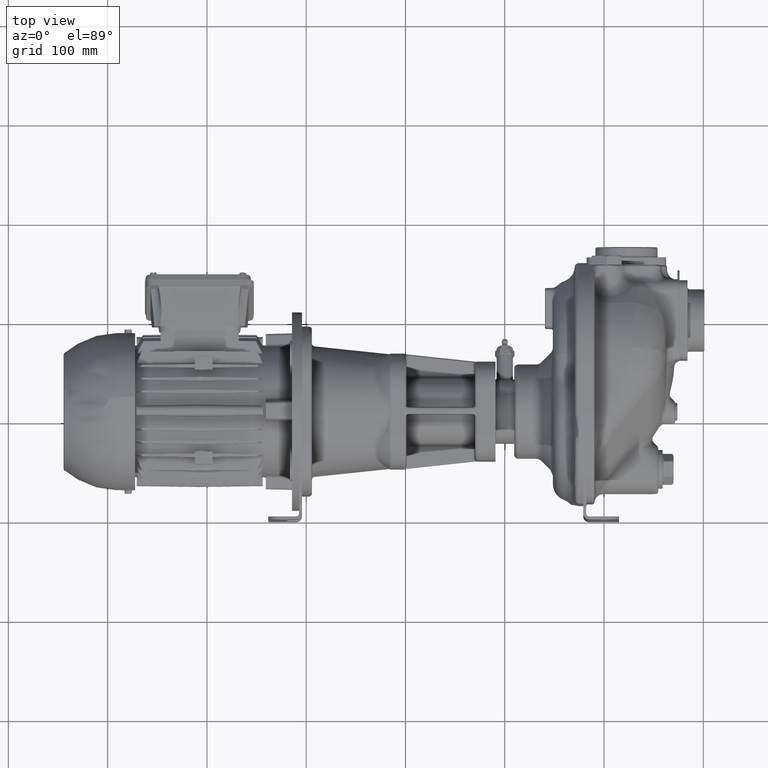
[diagram: clean part render]
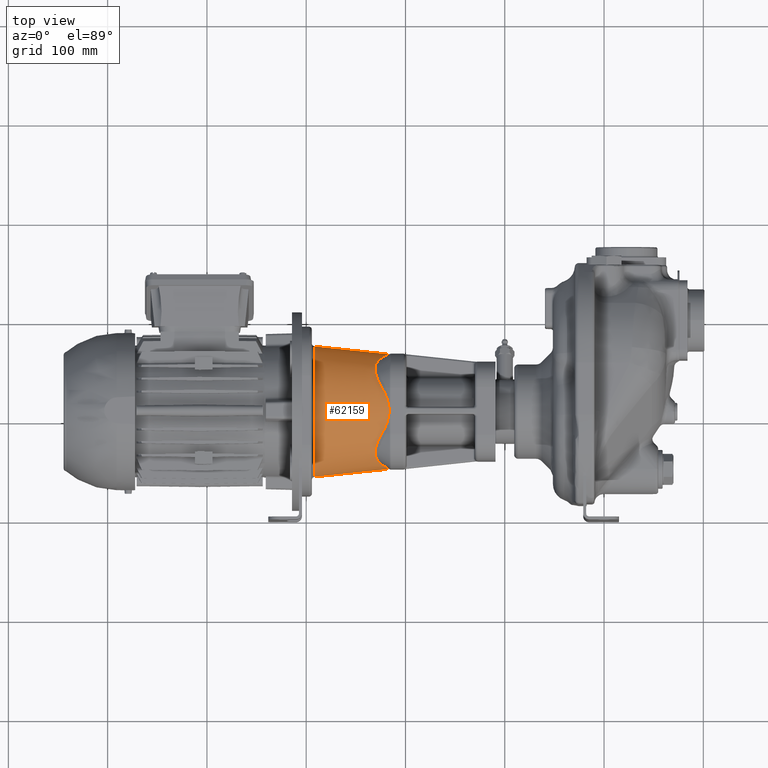
[diagram: same view with one face highlighted and labeled with its STEP entity id]
A machine part, top view. The second image highlights one B-rep face of the part: STEP entity #62159.
In plain terms, the highlighted conical surface has half-angle 6 deg.
Its self-contained STEP definition (entity closure, byte-faithful):
#12495=DIRECTION('',(9.945218953667E-1,1.045284632831E-1,0.E0));
#12496=VECTOR('',#12495,7.573120619177E1);
#12497=CARTESIAN_POINT('',(-2.916135853898E2,4.425481215539E1,
1.485829362958E-14));
#12498=LINE('',#12497,#12496);
#12511=CARTESIAN_POINT('',(-2.162972426696E2,5.217087876119E1,0.E0));
#12711=CARTESIAN_POINT('',(-2.162972426696E2,1.678291212388E2,0.E0));
#12735=CARTESIAN_POINT('',(-2.916135853898E2,1.1E2,0.E0));
#12736=DIRECTION('',(1.E0,0.E0,0.E0));
#12737=DIRECTION('',(0.E0,1.E0,0.E0));
#12738=AXIS2_PLACEMENT_3D('',#12735,#12736,#12737);
#12745=DIRECTION('',(9.945218953667E-1,-1.045284632831E-1,0.E0));
#12746=VECTOR('',#12745,7.573120619177E1);
#12747=CARTESIAN_POINT('',(-2.916135853898E2,1.757451878446E2,
-1.080946128312E-14));
#12748=LINE('',#12747,#12746);
#12749=CARTESIAN_POINT('',(-2.178097378126E2,1.672505349841E2,
9.219269410111E0));
#12750=CARTESIAN_POINT('',(-2.176890196349E2,1.673162071738E2,
8.731647483797E0));
#12751=CARTESIAN_POINT('',(-2.174598943548E2,1.674303657817E2,
7.793959418397E0));
#12752=CARTESIAN_POINT('',(-2.171524709747E2,1.675613179546E2,
6.467291625107E0));
#12753=CARTESIAN_POINT('',(-2.169075952571E2,1.676517311598E2,
5.318879883548E0));
#12754=CARTESIAN_POINT('',(-2.167153594959E2,1.677148396659E2,
4.311058331271E0));
#12755=CARTESIAN_POINT('',(-2.165702090771E2,1.677579831526E2,
3.430620553060E0));
#12756=CARTESIAN_POINT('',(-2.164626541015E2,1.677875618698E2,
2.646062856076E0));
#12757=CARTESIAN_POINT('',(-2.163854575885E2,1.678075452509E2,
1.930213703452E0));
#12758=CARTESIAN_POINT('',(-2.163335135172E2,1.678204134019E2,
1.260845323195E0));
#12759=CARTESIAN_POINT('',(-2.163036074568E2,1.678276105429E2,
6.204674837014E-1));
#12760=CARTESIAN_POINT('',(-2.162972432892E2,1.678291212869E2,
2.045278293982E-1));
#12761=CARTESIAN_POINT('',(-2.162972426696E2,1.678291212388E2,0.E0));
#12763=CARTESIAN_POINT('',(-2.232081546717E2,1.643120255443E2,
2.188490304259E1));
#12764=CARTESIAN_POINT('',(-2.229975200607E2,1.644267440128E2,
2.154097052883E1));
#12765=CARTESIAN_POINT('',(-2.225890865486E2,1.646491753191E2,
2.085614097833E1));
#12766=CARTESIAN_POINT('',(-2.220143612581E2,1.649621301244E2,
1.983939274068E1));
#12767=CARTESIAN_POINT('',(-2.214757642771E2,1.652553785563E2,
1.883237292535E1));
#12768=CARTESIAN_POINT('',(-2.209719358071E2,1.655296669165E2,
1.783486057273E1));
#12769=CARTESIAN_POINT('',(-2.205015176788E2,1.657857406005E2,
1.684647944565E1));
#12770=CARTESIAN_POINT('',(-2.200632380201E2,1.660242969797E2,
1.586682939850E1));
#12771=CARTESIAN_POINT('',(-2.196559156630E2,1.662459837265E2,
1.489551216629E1));
#12772=CARTESIAN_POINT('',(-2.192784449588E2,1.664514068261E2,
1.393210561728E1));
#12773=CARTESIAN_POINT('',(-2.189297914882E2,1.666411328566E2,
1.297615286718E1));
#12774=CARTESIAN_POINT('',(-2.186090234181E2,1.668156723822E2,
1.202726252442E1));
#12775=CARTESIAN_POINT('',(-2.183152378263E2,1.669755193639E2,
1.108490174240E1));
#12776=CARTESIAN_POINT('',(-2.180476512485E2,1.671211032180E2,
1.014866873998E1));
#12777=CARTESIAN_POINT('',(-2.178862596533E2,1.672089055462E2,
9.528370867959E0));
#12778=CARTESIAN_POINT('',(-2.178097378126E2,1.672505349841E2,
9.219269410111E0));
#12780=CARTESIAN_POINT('',(-2.232081546717E2,1.318849030426E2,
5.431202554433E1));
#12781=CARTESIAN_POINT('',(-2.234395400614E2,1.322627181065E2,
5.418600552504E1));
#12782=CARTESIAN_POINT('',(-2.238889409605E2,1.330076033303E2,
5.392804781907E1));
#12783=CARTESIAN_POINT('',(-2.245230046073E2,1.340918004823E2,
5.352540045904E1));
#12784=CARTESIAN_POINT('',(-2.251184044790E2,1.351440889983E2,
5.310828501815E1));
#12785=CARTESIAN_POINT('',(-2.256761308970E2,1.361650393646E2,
5.267808301270E1));
#12786=CARTESIAN_POINT('',(-2.261973444905E2,1.371554966063E2,
5.223599721658E1));
#12787=CARTESIAN_POINT('',(-2.266833306523E2,1.381165639381E2,
5.178301506967E1));
#12788=CARTESIAN_POINT('',(-2.271353204870E2,1.390492830803E2,
5.132004678436E1));
#12789=CARTESIAN_POINT('',(-2.275545710282E2,1.399548032087E2,
5.084784617877E1));
#12790=CARTESIAN_POINT('',(-2.279423067884E2,1.408342832700E2,
5.036705252714E1));
#12791=CARTESIAN_POINT('',(-2.282997169445E2,1.416888971375E2,
4.987818876460E1));
#12792=CARTESIAN_POINT('',(-2.286279428228E2,1.425198195103E2,
4.938166868352E1));
#12793=CARTESIAN_POINT('',(-2.289280681812E2,1.433282135505E2,
4.887780513940E1));
#12794=CARTESIAN_POINT('',(-2.292011125736E2,1.441152237127E2,
4.836681600748E1));
#12795=CARTESIAN_POINT('',(-2.294480258781E2,1.448819674814E2,
4.784883157979E1));
#12796=CARTESIAN_POINT('',(-2.296696847583E2,1.456295304471E2,
4.732390037845E1));
#12797=CARTESIAN_POINT('',(-2.298668896823E2,1.463589626065E2,
4.679199429846E1));
#12798=CARTESIAN_POINT('',(-2.300403628476E2,1.470712749442E2,
4.625301372712E1));
#12799=CARTESIAN_POINT('',(-2.301907468508E2,1.477674370097E2,
4.570679201422E1));
#12800=CARTESIAN_POINT('',(-2.303186038275E2,1.484483753566E2,
4.515309920234E1));
#12801=CARTESIAN_POINT('',(-2.304244156677E2,1.491149715773E2,
4.459164610435E1));
#12802=CARTESIAN_POINT('',(-2.305085841079E2,1.497680623632E2,
4.402208644048E1));
#12803=CARTESIAN_POINT('',(-2.305714301632E2,1.504084383440E2,
4.344401960572E1));
#12804=CARTESIAN_POINT('',(-2.306131943096E2,1.510368440534E2,
4.285699225538E1));
#12805=CARTESIAN_POINT('',(-2.306340366703E2,1.516539776368E2,
4.226049971522E1));
#12806=CARTESIAN_POINT('',(-2.306340368469E2,1.522604898149E2,
4.165398771337E1));
#12807=CARTESIAN_POINT('',(-2.306131947851E2,1.528569835009E2,
4.103685328058E1));
#12808=CARTESIAN_POINT('',(-2.305714308408E2,1.534440122171E2,
4.040844640482E1));
#12809=CARTESIAN_POINT('',(-2.305085849057E2,1.540220803319E2,
3.976806926247E1));
#12810=CARTESIAN_POINT('',(-2.304244165093E2,1.545916411907E2,
3.911497732513E1));
#12811=CARTESIAN_POINT('',(-2.303186046380E2,1.551530954093E2,
3.844837995431E1));
#12812=CARTESIAN_POINT('',(-2.301907475621E2,1.557067892507E2,
3.776744048299E1));
#12813=CARTESIAN_POINT('',(-2.300403634043E2,1.562530119006E2,
3.707127732774E1));
#12814=CARTESIAN_POINT('',(-2.298668900356E2,1.567919933122E2,
3.635896394687E1));
#12815=CARTESIAN_POINT('',(-2.296696848689E2,1.573239001303E2,
3.562953080596E1));
#12816=CARTESIAN_POINT('',(-2.294480257176E2,1.578488319633E2,
3.488196693585E1));
#12817=CARTESIAN_POINT('',(-2.292011121258E2,1.583668169139E2,
3.411522235416E1));
#12818=CARTESIAN_POINT('',(-2.289280674438E2,1.588778064580E2,
3.332821148613E1));
#12819=CARTESIAN_POINT('',(-2.286279418108E2,1.593816703044E2,
3.251981686113E1));
#12820=CARTESIAN_POINT('',(-2.282997156880E2,1.598781905775E2,
3.168889404180E1));
#12821=CARTESIAN_POINT('',(-2.279423053319E2,1.603670544265E2,
3.083427987647E1));
#12822=CARTESIAN_POINT('',(-2.275545694380E2,1.608478480563E2,
2.995479969199E1));
#12823=CARTESIAN_POINT('',(-2.271353188447E2,1.613200485443E2,
2.904927961906E1));
#12824=CARTESIAN_POINT('',(-2.266833290396E2,1.617830166367E2,
2.811656068963E1));
#12825=CARTESIAN_POINT('',(-2.261973431356E2,1.622359984146E2,
2.715549398587E1));
#12826=CARTESIAN_POINT('',(-2.256761296129E2,1.626780840496E2,
2.616503697042E1));
#12827=CARTESIAN_POINT('',(-2.251184033436E2,1.631082858447E2,
2.514408696486E1));
#12828=CARTESIAN_POINT('',(-2.245230037587E2,1.635254010190E2,
2.409179901302E1));
#12829=CARTESIAN_POINT('',(-2.238889403433E2,1.639280481790E2,
2.300760230840E1));
#12830=CARTESIAN_POINT('',(-2.234395398370E2,1.641860056530E2,
2.226271772854E1));
#12831=CARTESIAN_POINT('',(-2.232081546717E2,1.643120255443E2,
2.188490304259E1));
#12833=CARTESIAN_POINT('',(-2.178097378126E2,1.192192694101E2,
5.725053498425E1));
#12834=CARTESIAN_POINT('',(-2.178862596511E2,1.195283708620E2,
5.720890554731E1));
#12835=CARTESIAN_POINT('',(-2.180476512444E2,1.201486687228E2,
5.712110322040E1));
#12836=CARTESIAN_POINT('',(-2.183152378190E2,1.210849017192E2,
5.697551936764E1));
#12837=CARTESIAN_POINT('',(-2.186090234066E2,1.220272624882E2,
5.681567238869E1));
#12838=CARTESIAN_POINT('',(-2.189297914902E2,1.229761528752E2,
5.664113285539E1));
#12839=CARTESIAN_POINT('',(-2.192784449895E2,1.239321056999E2,
5.645140680948E1));
#12840=CARTESIAN_POINT('',(-2.196559157277E2,1.248955123273E2,
5.624598369132E1));
#12841=CARTESIAN_POINT('',(-2.200632381185E2,1.258668296274E2,
5.602429692602E1));
#12842=CARTESIAN_POINT('',(-2.205015178170E2,1.268464797462E2,
5.578574052530E1));
#12843=CARTESIAN_POINT('',(-2.209719359785E2,1.278348609235E2,
5.552966682302E1));
#12844=CARTESIAN_POINT('',(-2.214757644649E2,1.288323732850E2,
5.525537845438E1));
#12845=CARTESIAN_POINT('',(-2.220143614521E2,1.298393930963E2,
5.496213001835E1));
#12846=CARTESIAN_POINT('',(-2.225890867932E2,1.308561413955E2,
5.464917518634E1));
#12847=CARTESIAN_POINT('',(-2.229975201619E2,1.315409706965E2,
5.442674395748E1));
#12848=CARTESIAN_POINT('',(-2.232081546717E2,1.318849030426E2,
5.431202554433E1));
#12850=CARTESIAN_POINT('',(-2.178097378126E2,1.007807305899E2,
5.725053498402E1));
#12851=CARTESIAN_POINT('',(-2.176891615503E2,1.012677793627E2,
5.731612998416E1));
#12852=CARTESIAN_POINT('',(-2.174602840830E2,1.022044374470E2,
5.743017828406E1));
#12853=CARTESIAN_POINT('',(-2.171531113421E2,1.035298754064E2,
5.756106012540E1));
#12854=CARTESIAN_POINT('',(-2.169083415381E2,1.046774796263E2,
5.765146955037E1));
#12855=CARTESIAN_POINT('',(-2.167161304847E2,1.056846583996E2,
5.771459834488E1));
#12856=CARTESIAN_POINT('',(-2.165709210484E2,1.065647317201E2,
5.775777953287E1));
#12857=CARTESIAN_POINT('',(-2.164632965035E2,1.073487511112E2,
5.778739070035E1));
#12858=CARTESIAN_POINT('',(-2.163859398525E2,1.080646313860E2,
5.780742340240E1));
#12859=CARTESIAN_POINT('',(-2.163338566934E2,1.087337218705E2,
5.782032979892E1));
#12860=CARTESIAN_POINT('',(-2.163037958847E2,1.093738120390E2,
5.782756632804E1));
#12861=CARTESIAN_POINT('',(-2.162939661104E2,1.099999969094E2,
5.782989868394E1));
#12862=CARTESIAN_POINT('',(-2.163037956904E2,1.106261814660E2,
5.782756637605E1));
#12863=CARTESIAN_POINT('',(-2.163338562563E2,1.112662712200E2,
5.782032990390E1));
#12864=CARTESIAN_POINT('',(-2.163859392033E2,1.119353615745E2,
5.780742356713E1));
#12865=CARTESIAN_POINT('',(-2.164632955390E2,1.126512410926E2,
5.778739095681E1));
#12866=CARTESIAN_POINT('',(-2.165709198334E2,1.134352601499E2,
5.775777987608E1));
#12867=CARTESIAN_POINT('',(-2.167161285895E2,1.143153311004E2,
5.771459893934E1));
#12868=CARTESIAN_POINT('',(-2.169083401725E2,1.153225137310E2,
5.765147002426E1));
#12869=CARTESIAN_POINT('',(-2.171531099972E2,1.164701187729E2,
5.756106069434E1));
#12870=CARTESIAN_POINT('',(-2.174602854709E2,1.177955684429E2,
5.743017768220E1));
#12871=CARTESIAN_POINT('',(-2.176891622186E2,1.187322233969E2,
5.731612961206E1));
#12872=CARTESIAN_POINT('',(-2.178097378126E2,1.192192694101E2,
5.725053498425E1));
#12874=CARTESIAN_POINT('',(-2.232081546717E2,8.811509695741E1,
5.431202554425E1));
#12875=CARTESIAN_POINT('',(-2.229975200610E2,8.845902947068E1,
5.442674401264E1));
#12876=CARTESIAN_POINT('',(-2.225890865494E2,8.914385902030E1,
5.464917531869E1));
#12877=CARTESIAN_POINT('',(-2.220143612594E2,9.016060725710E1,
5.496213012376E1));
#12878=CARTESIAN_POINT('',(-2.214757642786E2,9.116762707179E1,
5.525537855548E1));
#12879=CARTESIAN_POINT('',(-2.209719358090E2,9.216513942350E1,
5.552966691551E1));
#12880=CARTESIAN_POINT('',(-2.205015176811E2,9.315352054953E1,
5.578574059926E1));
#12881=CARTESIAN_POINT('',(-2.200632380228E2,9.413317059536E1,
5.602429697820E1));
#12882=CARTESIAN_POINT('',(-2.196559156663E2,9.510448782564E1,
5.624598372471E1));
#12883=CARTESIAN_POINT('',(-2.192784449624E2,9.606789437326E1,
5.645140682412E1));
#12884=CARTESIAN_POINT('',(-2.189297914921E2,9.702384712172E1,
5.664113285449E1));
#12885=CARTESIAN_POINT('',(-2.186090234213E2,9.797273746584E1,
5.681567238049E1));
#12886=CARTESIAN_POINT('',(-2.183152378300E2,9.891509824547E1,
5.697551936196E1));
#12887=CARTESIAN_POINT('',(-2.180476512510E2,9.985133125089E1,
5.712110321670E1));
#12888=CARTESIAN_POINT('',(-2.178862596542E2,1.004716291284E2,
5.720890554566E1));
#12889=CARTESIAN_POINT('',(-2.178097378126E2,1.007807305899E2,
5.725053498402E1));
#12891=CARTESIAN_POINT('',(-2.232081546717E2,5.568797445567E1,
2.188490304262E1));
#12892=CARTESIAN_POINT('',(-2.234395400631E2,5.581399447586E1,
2.226271810925E1));
#12893=CARTESIAN_POINT('',(-2.238889409647E2,5.607195218348E1,
2.300760333746E1));
#12894=CARTESIAN_POINT('',(-2.245230046135E2,5.647459954502E1,
2.409180049290E1));
#12895=CARTESIAN_POINT('',(-2.251184044858E2,5.689171498681E1,
2.514408901048E1));
#12896=CARTESIAN_POINT('',(-2.256761309029E2,5.732191699204E1,
2.616503937556E1));
#12897=CARTESIAN_POINT('',(-2.261973444967E2,5.776400278892E1,
2.715549661829E1));
#12898=CARTESIAN_POINT('',(-2.266833306573E2,5.821698493524E1,
2.811656394820E1));
#12899=CARTESIAN_POINT('',(-2.271353204919E2,5.867995322096E1,
2.904928309076E1));
#12900=CARTESIAN_POINT('',(-2.275545710329E2,5.915215382679E1,
2.995480321908E1));
#12901=CARTESIAN_POINT('',(-2.279423067928E2,5.963294747854E1,
3.083428328013E1));
#12902=CARTESIAN_POINT('',(-2.282997169485E2,6.012181124120E1,
3.168889714746E1));
#12903=CARTESIAN_POINT('',(-2.286279428265E2,6.061833132233E1,
3.251981951984E1));
#12904=CARTESIAN_POINT('',(-2.289280681845E2,6.112219486655E1,
3.332821355988E1));
#12905=CARTESIAN_POINT('',(-2.292011125769E2,6.163318399893E1,
3.411522372241E1));
#12906=CARTESIAN_POINT('',(-2.294480258811E2,6.215116842685E1,
3.488196749107E1));
#12907=CARTESIAN_POINT('',(-2.296696847609E2,6.267609962806E1,
3.562953045623E1));
#12908=CARTESIAN_POINT('',(-2.298668896847E2,6.320800570849E1,
3.635896261590E1));
#12909=CARTESIAN_POINT('',(-2.300403628500E2,6.374698628060E1,
3.707127495423E1));
#12910=CARTESIAN_POINT('',(-2.301907468527E2,6.429320799331E1,
3.776743701914E1));
#12911=CARTESIAN_POINT('',(-2.303186038294E2,6.484690080641E1,
3.844837536721E1));
#12912=CARTESIAN_POINT('',(-2.304244156690E2,6.540835390331E1,
3.911497158625E1));
#12913=CARTESIAN_POINT('',(-2.305085841091E2,6.597791356880E1,
3.976806237367E1));
#12914=CARTESIAN_POINT('',(-2.305714301642E2,6.655598040426E1,
4.040843835489E1));
#12915=CARTESIAN_POINT('',(-2.306131943100E2,6.714300775402E1,
4.103684406327E1));
#12916=CARTESIAN_POINT('',(-2.306340366706E2,6.773950029640E1,
4.165397764868E1));
#12917=CARTESIAN_POINT('',(-2.306340368466E2,6.834601229812E1,
4.226048982621E1));
#12918=CARTESIAN_POINT('',(-2.306131947847E2,6.896314672859E1,
4.285698350963E1));
#12919=CARTESIAN_POINT('',(-2.305714308398E2,6.959155360537E1,
4.344401222647E1));
#12920=CARTESIAN_POINT('',(-2.305085849046E2,7.023193074742E1,
4.402208034066E1));
#12921=CARTESIAN_POINT('',(-2.304244165081E2,7.088502268322E1,
4.459164119788E1));
#12922=CARTESIAN_POINT('',(-2.303186046362E2,7.155162005569E1,
4.515309541760E1));
#12923=CARTESIAN_POINT('',(-2.301907475603E2,7.223255952588E1,
4.570678925781E1));
#12924=CARTESIAN_POINT('',(-2.300403634021E2,7.292872268172E1,
4.625301190790E1));
#12925=CARTESIAN_POINT('',(-2.298668900333E2,7.364103606199E1,
4.679199331879E1));
#12926=CARTESIAN_POINT('',(-2.296696848665E2,7.437046920264E1,
4.732390013647E1));
#12927=CARTESIAN_POINT('',(-2.294480257147E2,7.511803307329E1,
4.784883196957E1));
#12928=CARTESIAN_POINT('',(-2.292011121227E2,7.588477765506E1,
4.836681691997E1));
#12929=CARTESIAN_POINT('',(-2.289280674406E2,7.667178852277E1,
4.887780646366E1));
#12930=CARTESIAN_POINT('',(-2.286279418073E2,7.748018314804E1,
4.938167031002E1));
#12931=CARTESIAN_POINT('',(-2.282997156841E2,7.831110596774E1,
4.987819058309E1));
#12932=CARTESIAN_POINT('',(-2.279423053277E2,7.916572013334E1,
5.036705443197E1));
#12933=CARTESIAN_POINT('',(-2.275545694334E2,8.004520031811E1,
5.084784806174E1));
#12934=CARTESIAN_POINT('',(-2.271353188399E2,8.095072039115E1,
5.132004854953E1));
#12935=CARTESIAN_POINT('',(-2.266833290347E2,8.188343932028E1,
5.178301664147E1));
#12936=CARTESIAN_POINT('',(-2.261973431295E2,8.284450602595E1,
5.223599842005E1));
#12937=CARTESIAN_POINT('',(-2.256761296071E2,8.383496304040E1,
5.267808405430E1));
#12938=CARTESIAN_POINT('',(-2.251184033369E2,8.485591304726E1,
5.310828584965E1));
#12939=CARTESIAN_POINT('',(-2.245230037525E2,8.590820099772E1,
5.352540102313E1));
#12940=CARTESIAN_POINT('',(-2.238889403389E2,8.699239769901E1,
5.392804818166E1));
#12941=CARTESIAN_POINT('',(-2.234395398353E2,8.773728227425E1,
5.418600565395E1));
#12942=CARTESIAN_POINT('',(-2.232081546717E2,8.811509695741E1,
5.431202554425E1));
#12944=CARTESIAN_POINT('',(-2.178097378126E2,5.274946501571E1,
9.219269410149E0));
#12945=CARTESIAN_POINT('',(-2.178862596502E2,5.279109445216E1,
9.528370858314E0));
#12946=CARTESIAN_POINT('',(-2.180476512420E2,5.287889677829E1,
1.014866871366E1));
#12947=CARTESIAN_POINT('',(-2.183152378154E2,5.302448063038E1,
1.108490170705E1));
#12948=CARTESIAN_POINT('',(-2.186090234034E2,5.318432760958E1,
1.202726247843E1));
#12949=CARTESIAN_POINT('',(-2.189297914863E2,5.335886714248E1,
1.297615286403E1));
#12950=CARTESIAN_POINT('',(-2.192784449859E2,5.354859318856E1,
1.393210569045E1));
#12951=CARTESIAN_POINT('',(-2.196559157244E2,5.375401630688E1,
1.489551231921E1));
#12952=CARTESIAN_POINT('',(-2.200632381158E2,5.397570307252E1,
1.586682962121E1));
#12953=CARTESIAN_POINT('',(-2.205015178147E2,5.421425947347E1,
1.684647974131E1));
#12954=CARTESIAN_POINT('',(-2.209719359767E2,5.447033317595E1,
1.783486091967E1));
#12955=CARTESIAN_POINT('',(-2.214757644634E2,5.474462154479E1,
1.883237328213E1));
#12956=CARTESIAN_POINT('',(-2.220143614509E2,5.503786998096E1,
1.983939309405E1));
#12957=CARTESIAN_POINT('',(-2.225890867923E2,5.535082481320E1,
2.085614139408E1));
#12958=CARTESIAN_POINT('',(-2.229975201616E2,5.557325604235E1,
2.154097069594E1));
#12959=CARTESIAN_POINT('',(-2.232081546717E2,5.568797445567E1,
2.188490304262E1));
#12961=CARTESIAN_POINT('',(-2.162972426696E2,5.217087876119E1,0.E0));
#12962=CARTESIAN_POINT('',(-2.162972434564E2,5.217087869755E1,
2.045332375914E-1));
#12963=CARTESIAN_POINT('',(-2.163036073578E2,5.217238947654E1,
6.204842063356E-1));
#12964=CARTESIAN_POINT('',(-2.163335176579E2,5.217958762454E1,
1.260917518673E0));
#12965=CARTESIAN_POINT('',(-2.163854632652E2,5.219245619114E1,
1.930268851103E0));
#12966=CARTESIAN_POINT('',(-2.164626547967E2,5.221243833384E1,
2.646065206375E0));
#12967=CARTESIAN_POINT('',(-2.165702067786E2,5.224201620410E1,
3.430605173417E0));
#12968=CARTESIAN_POINT('',(-2.167153568904E2,5.228515949716E1,
4.311044177317E0));
#12969=CARTESIAN_POINT('',(-2.169075952255E2,5.234826879671E1,
5.318880231624E0));
#12970=CARTESIAN_POINT('',(-2.171524736761E2,5.243868303945E1,
6.467304169255E0));
#12971=CARTESIAN_POINT('',(-2.174599009936E2,5.256963727338E1,
7.793987112122E0));
#12972=CARTESIAN_POINT('',(-2.176890225737E2,5.268379443566E1,
8.731659429138E0));
#12973=CARTESIAN_POINT('',(-2.178097378126E2,5.274946501571E1,
9.219269410149E0));
#37383=CARTESIAN_POINT('',(-2.916135853898E2,1.757451878446E2,
-1.027173056158E-14));
#37384=VERTEX_POINT('',#37383);
#37451=VERTEX_POINT('',#12763);
#37452=VERTEX_POINT('',#12778);
#37455=VERTEX_POINT('',#12711);
#37472=VERTEX_POINT('',#12511);
#37475=VERTEX_POINT('',#12944);
#37476=VERTEX_POINT('',#12959);
#37478=VERTEX_POINT('',#12942);
#37480=VERTEX_POINT('',#12889);
#37482=VERTEX_POINT('',#12872);
#37484=VERTEX_POINT('',#12848);
#37485=CARTESIAN_POINT('',(-2.916135853898E2,4.425481215539E1,
1.485829362958E-14));
#37486=VERTEX_POINT('',#37485);
#62139=CARTESIAN_POINT('',(-2.539554140296E2,1.1E2,0.E0));
#62140=DIRECTION('',(-1.E0,0.E0,0.E0));
#62141=DIRECTION('',(0.E0,-1.E0,0.E0));
#62142=AXIS2_PLACEMENT_3D('',#62139,#62140,#62141);
#62143=CONICAL_SURFACE('',#62142,6.178715454229E1,6.E0);
#62144=ORIENTED_EDGE('',*,*,#62094,.F.);
#62145=ORIENTED_EDGE('',*,*,#62130,.F.);
#62146=ORIENTED_EDGE('',*,*,#62105,.T.);
#62147=ORIENTED_EDGE('',*,*,#60696,.F.);
#62148=ORIENTED_EDGE('',*,*,#60770,.F.);
#62149=ORIENTED_EDGE('',*,*,#60991,.F.);
#62150=ORIENTED_EDGE('',*,*,#61066,.F.);
#62151=ORIENTED_EDGE('',*,*,#61222,.F.);
#62152=ORIENTED_EDGE('',*,*,#61297,.F.);
#62153=ORIENTED_EDGE('',*,*,#61518,.F.);
#62154=ORIENTED_EDGE('',*,*,#61593,.F.);
#62156=ORIENTED_EDGE('',*,*,#62155,.F.);
#62157=EDGE_LOOP('',(#62144,#62145,#62146,#62147,#62148,#62149,#62150,#62151,
#62152,#62153,#62154,#62156));
#62158=FACE_OUTER_BOUND('',#62157,.F.);
#62159=ADVANCED_FACE('',(#62158),#62143,.T.);
#12739=CIRCLE('',#12738,6.574518784461E1);
#12762=B_SPLINE_CURVE_WITH_KNOTS('',3,(#12749,#12750,#12751,#12752,#12753,
#12754,#12755,#12756,#12757,#12758,#12759,#12760,#12761),.UNSPECIFIED.,.F.,.F.,(
4,1,1,1,1,1,1,1,1,1,4),(0.E0,1.E-1,2.E-1,3.E-1,4.E-1,5.E-1,6.E-1,7.E-1,8.E-1,
9.E-1,1.E0),.UNSPECIFIED.);
#12779=B_SPLINE_CURVE_WITH_KNOTS('',3,(#12763,#12764,#12765,#12766,#12767,
#12768,#12769,#12770,#12771,#12772,#12773,#12774,#12775,#12776,#12777,#12778),
.UNSPECIFIED.,.F.,.F.,(4,1,1,1,1,1,1,1,1,1,1,1,1,4),(0.E0,7.692307692308E-2,
1.538461538462E-1,2.307692307692E-1,3.076923076923E-1,3.846153846154E-1,
4.615384615385E-1,5.384615384615E-1,6.153846153846E-1,6.923076923077E-1,
7.692307692308E-1,8.461538461538E-1,9.230769230769E-1,1.E0),.UNSPECIFIED.);
#12832=B_SPLINE_CURVE_WITH_KNOTS('',3,(#12780,#12781,#12782,#12783,#12784,
#12785,#12786,#12787,#12788,#12789,#12790,#12791,#12792,#12793,#12794,#12795,
#12796,#12797,#12798,#12799,#12800,#12801,#12802,#12803,#12804,#12805,#12806,
#12807,#12808,#12809,#12810,#12811,#12812,#12813,#12814,#12815,#12816,#12817,
#12818,#12819,#12820,#12821,#12822,#12823,#12824,#12825,#12826,#12827,#12828,
#12829,#12830,#12831),.UNSPECIFIED.,.F.,.F.,(4,1,1,1,1,1,1,1,1,1,1,1,1,1,1,1,1,
1,1,1,1,1,1,1,1,1,1,1,1,1,1,1,1,1,1,1,1,1,1,1,1,1,1,1,1,1,1,1,1,4),(0.E0,
2.040816326531E-2,4.081632653061E-2,6.122448979592E-2,8.163265306122E-2,
1.020408163265E-1,1.224489795918E-1,1.428571428571E-1,1.632653061224E-1,
1.836734693878E-1,2.040816326531E-1,2.244897959184E-1,2.448979591837E-1,
2.653061224490E-1,2.857142857143E-1,3.061224489796E-1,3.265306122449E-1,
3.469387755102E-1,3.673469387755E-1,3.877551020408E-1,4.081632653061E-1,
4.285714285714E-1,4.489795918367E-1,4.693877551020E-1,4.897959183673E-1,
5.102040816327E-1,5.306122448980E-1,5.510204081633E-1,5.714285714286E-1,
5.918367346939E-1,6.122448979592E-1,6.326530612245E-1,6.530612244898E-1,
6.734693877551E-1,6.938775510204E-1,7.142857142857E-1,7.346938775510E-1,
7.551020408163E-1,7.755102040816E-1,7.959183673469E-1,8.163265306122E-1,
8.367346938776E-1,8.571428571429E-1,8.775510204082E-1,8.979591836735E-1,
9.183673469388E-1,9.387755102041E-1,9.591836734694E-1,9.795918367347E-1,1.E0),
.UNSPECIFIED.);
#12849=B_SPLINE_CURVE_WITH_KNOTS('',3,(#12833,#12834,#12835,#12836,#12837,
#12838,#12839,#12840,#12841,#12842,#12843,#12844,#12845,#12846,#12847,#12848),
.UNSPECIFIED.,.F.,.F.,(4,1,1,1,1,1,1,1,1,1,1,1,1,4),(0.E0,7.692307692308E-2,
1.538461538462E-1,2.307692307692E-1,3.076923076923E-1,3.846153846154E-1,
4.615384615385E-1,5.384615384615E-1,6.153846153846E-1,6.923076923077E-1,
7.692307692308E-1,8.461538461538E-1,9.230769230769E-1,1.E0),.UNSPECIFIED.);
#12873=B_SPLINE_CURVE_WITH_KNOTS('',3,(#12850,#12851,#12852,#12853,#12854,
#12855,#12856,#12857,#12858,#12859,#12860,#12861,#12862,#12863,#12864,#12865,
#12866,#12867,#12868,#12869,#12870,#12871,#12872),.UNSPECIFIED.,.F.,.F.,(4,1,1,
1,1,1,1,1,1,1,1,1,1,1,1,1,1,1,1,1,4),(0.E0,5.E-2,1.E-1,1.5E-1,2.E-1,2.5E-1,
3.E-1,3.5E-1,4.E-1,4.5E-1,5.E-1,5.5E-1,6.E-1,6.5E-1,7.E-1,7.5E-1,8.E-1,8.5E-1,
9.E-1,9.5E-1,1.E0),.UNSPECIFIED.);
#12890=B_SPLINE_CURVE_WITH_KNOTS('',3,(#12874,#12875,#12876,#12877,#12878,
#12879,#12880,#12881,#12882,#12883,#12884,#12885,#12886,#12887,#12888,#12889),
.UNSPECIFIED.,.F.,.F.,(4,1,1,1,1,1,1,1,1,1,1,1,1,4),(0.E0,7.692307692308E-2,
1.538461538462E-1,2.307692307692E-1,3.076923076923E-1,3.846153846154E-1,
4.615384615385E-1,5.384615384615E-1,6.153846153846E-1,6.923076923077E-1,
7.692307692308E-1,8.461538461538E-1,9.230769230769E-1,1.E0),.UNSPECIFIED.);
#12943=B_SPLINE_CURVE_WITH_KNOTS('',3,(#12891,#12892,#12893,#12894,#12895,
#12896,#12897,#12898,#12899,#12900,#12901,#12902,#12903,#12904,#12905,#12906,
#12907,#12908,#12909,#12910,#12911,#12912,#12913,#12914,#12915,#12916,#12917,
#12918,#12919,#12920,#12921,#12922,#12923,#12924,#12925,#12926,#12927,#12928,
#12929,#12930,#12931,#12932,#12933,#12934,#12935,#12936,#12937,#12938,#12939,
#12940,#12941,#12942),.UNSPECIFIED.,.F.,.F.,(4,1,1,1,1,1,1,1,1,1,1,1,1,1,1,1,1,
1,1,1,1,1,1,1,1,1,1,1,1,1,1,1,1,1,1,1,1,1,1,1,1,1,1,1,1,1,1,1,1,4),(0.E0,
2.040816326531E-2,4.081632653061E-2,6.122448979592E-2,8.163265306122E-2,
1.020408163265E-1,1.224489795918E-1,1.428571428571E-1,1.632653061224E-1,
1.836734693878E-1,2.040816326531E-1,2.244897959184E-1,2.448979591837E-1,
2.653061224490E-1,2.857142857143E-1,3.061224489796E-1,3.265306122449E-1,
3.469387755102E-1,3.673469387755E-1,3.877551020408E-1,4.081632653061E-1,
4.285714285714E-1,4.489795918367E-1,4.693877551020E-1,4.897959183673E-1,
5.102040816327E-1,5.306122448980E-1,5.510204081633E-1,5.714285714286E-1,
5.918367346939E-1,6.122448979592E-1,6.326530612245E-1,6.530612244898E-1,
6.734693877551E-1,6.938775510204E-1,7.142857142857E-1,7.346938775510E-1,
7.551020408163E-1,7.755102040816E-1,7.959183673469E-1,8.163265306122E-1,
8.367346938776E-1,8.571428571429E-1,8.775510204082E-1,8.979591836735E-1,
9.183673469388E-1,9.387755102041E-1,9.591836734694E-1,9.795918367347E-1,1.E0),
.UNSPECIFIED.);
#12960=B_SPLINE_CURVE_WITH_KNOTS('',3,(#12944,#12945,#12946,#12947,#12948,
#12949,#12950,#12951,#12952,#12953,#12954,#12955,#12956,#12957,#12958,#12959),
.UNSPECIFIED.,.F.,.F.,(4,1,1,1,1,1,1,1,1,1,1,1,1,4),(0.E0,7.692307692308E-2,
1.538461538462E-1,2.307692307692E-1,3.076923076923E-1,3.846153846154E-1,
4.615384615385E-1,5.384615384615E-1,6.153846153846E-1,6.923076923077E-1,
7.692307692308E-1,8.461538461538E-1,9.230769230769E-1,1.E0),.UNSPECIFIED.);
#12974=B_SPLINE_CURVE_WITH_KNOTS('',3,(#12961,#12962,#12963,#12964,#12965,
#12966,#12967,#12968,#12969,#12970,#12971,#12972,#12973),.UNSPECIFIED.,.F.,.F.,(
4,1,1,1,1,1,1,1,1,1,4),(0.E0,1.E-1,2.E-1,3.E-1,4.E-1,5.E-1,6.E-1,7.E-1,8.E-1,
9.E-1,1.E0),.UNSPECIFIED.);
#60696=EDGE_CURVE('',#37452,#37455,#12762,.T.);
#60770=EDGE_CURVE('',#37451,#37452,#12779,.T.);
#60991=EDGE_CURVE('',#37484,#37451,#12832,.T.);
#61066=EDGE_CURVE('',#37482,#37484,#12849,.T.);
#61222=EDGE_CURVE('',#37480,#37482,#12873,.T.);
#61297=EDGE_CURVE('',#37478,#37480,#12890,.T.);
#61518=EDGE_CURVE('',#37476,#37478,#12943,.T.);
#61593=EDGE_CURVE('',#37475,#37476,#12960,.T.);
#62094=EDGE_CURVE('',#37486,#37472,#12498,.T.);
#62105=EDGE_CURVE('',#37384,#37455,#12748,.T.);
#62130=EDGE_CURVE('',#37384,#37486,#12739,.T.);
#62155=EDGE_CURVE('',#37472,#37475,#12974,.T.);